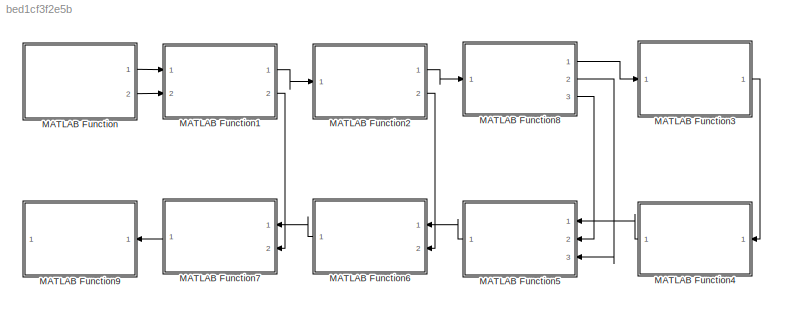
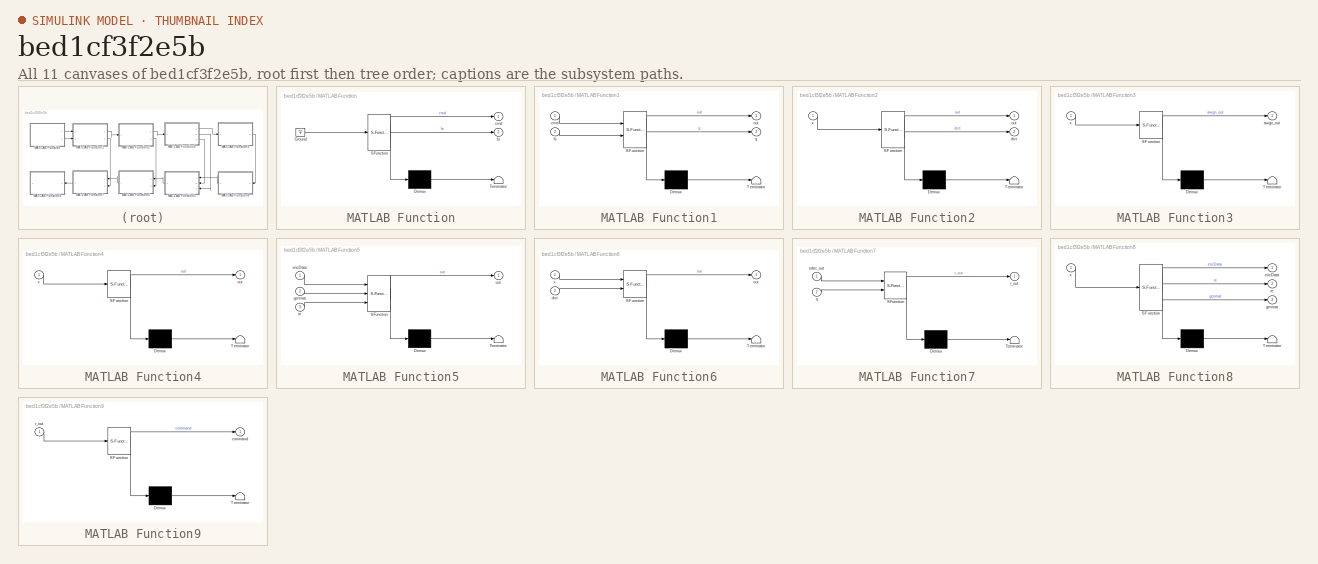
[diagram: thumbnail index - all 11 canvases of the model, root first then tree order]
MODEL slx_bed1cf3f2e5b
KIND model
CONFIG AbsTol = auto
CONFIG EnableMultiTasking = off
CONFIG FixedStep = auto
CONFIG MaxStep = auto
CONFIG MinStep = auto
CONFIG RelTol = 1e-3
CONFIG SampleTimeConstraint = Unconstrained
CONFIG Solver = VariableStepAuto
CONFIG SolverName = VariableStepAuto
CONFIG StartTime = 0.0
CONFIG StopTime = 10.0
BLOCK [SubSystem] MATLAB Function
  ErrorFcn = Stateflow.Translate.translate
  PermitHierarchicalResolution = ExplicitOnly
  Ports = [0, 2]
  RequestExecContextInheritance = off
  SFBlockType = MATLAB Function
  TreatAsAtomicUnit = on
BLOCK [Demux] MATLAB Function/ Demux 
  Outputs = 1
  Ports = [1, 1]
BLOCK [Ground] MATLAB Function/ Ground 
BLOCK [S-Function] MATLAB Function/ SFunction 
  EnableBusSupport = off
  FunctionName = sf_sfun
  PortCounts = [1 3]
  Ports = [1, 3]
  SFcnIsStateOwnerBlock = off
  SFunctionDeploymentMode = off
  Tag = Stateflow S-Function 2
BLOCK [Terminator] MATLAB Function/ Terminator 
BLOCK [Outport] MATLAB Function/cmd
BLOCK [Outport] MATLAB Function/fs
  Port = 2
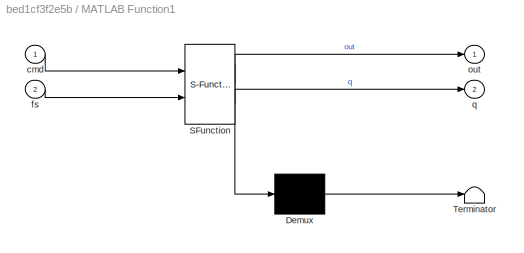
BLOCK [SubSystem] MATLAB Function1
  ErrorFcn = Stateflow.Translate.translate
  PermitHierarchicalResolution = ExplicitOnly
  Ports = [2, 2]
  RequestExecContextInheritance = off
  SFBlockType = MATLAB Function
  TreatAsAtomicUnit = on
BLOCK [Demux] MATLAB Function1/ Demux 
  Outputs = 1
  Ports = [1, 1]
BLOCK [S-Function] MATLAB Function1/ SFunction 
  EnableBusSupport = off
  FunctionName = sf_sfun
  PortCounts = [2 3]
  Ports = [2, 3]
  SFcnIsStateOwnerBlock = off
  SFunctionDeploymentMode = off
  Tag = Stateflow S-Function 1
BLOCK [Terminator] MATLAB Function1/ Terminator 
BLOCK [Inport] MATLAB Function1/cmd
BLOCK [Inport] MATLAB Function1/fs
  Port = 2
BLOCK [Outport] MATLAB Function1/out
BLOCK [Outport] MATLAB Function1/q
  Port = 2
BLOCK [SubSystem] MATLAB Function2
  ErrorFcn = Stateflow.Translate.translate
  PermitHierarchicalResolution = ExplicitOnly
  Ports = [1, 2]
  RequestExecContextInheritance = off
  SFBlockType = MATLAB Function
  TreatAsAtomicUnit = on
BLOCK [Demux] MATLAB Function2/ Demux 
  Outputs = 1
  Ports = [1, 1]
BLOCK [S-Function] MATLAB Function2/ SFunction 
  EnableBusSupport = off
  FunctionName = sf_sfun
  PortCounts = [1 3]
  Ports = [1, 3]
  SFcnIsStateOwnerBlock = off
  SFunctionDeploymentMode = off
  Tag = Stateflow S-Function 3
BLOCK [Terminator] MATLAB Function2/ Terminator 
BLOCK [Outport] MATLAB Function2/dict
  Port = 2
BLOCK [Outport] MATLAB Function2/out
BLOCK [Inport] MATLAB Function2/x
BLOCK [SubSystem] MATLAB Function3
  ErrorFcn = Stateflow.Translate.translate
  PermitHierarchicalResolution = ExplicitOnly
  Ports = [1, 1]
  RequestExecContextInheritance = off
  SFBlockType = MATLAB Function
  TreatAsAtomicUnit = on
BLOCK [Demux] MATLAB Function3/ Demux 
  Outputs = 1
  Ports = [1, 1]
BLOCK [S-Function] MATLAB Function3/ SFunction 
  EnableBusSupport = off
  FunctionName = sf_sfun
  PortCounts = [1 2]
  Ports = [1, 2]
  SFcnIsStateOwnerBlock = off
  SFunctionDeploymentMode = off
  Tag = Stateflow S-Function 4
BLOCK [Terminator] MATLAB Function3/ Terminator 
BLOCK [Outport] MATLAB Function3/awgn_out
BLOCK [Inport] MATLAB Function3/x
BLOCK [SubSystem] MATLAB Function4
  ErrorFcn = Stateflow.Translate.translate
  PermitHierarchicalResolution = ExplicitOnly
  Ports = [1, 1]
  RequestExecContextInheritance = off
  SFBlockType = MATLAB Function
  TreatAsAtomicUnit = on
BLOCK [Demux] MATLAB Function4/ Demux 
  Outputs = 1
  Ports = [1, 1]
BLOCK [S-Function] MATLAB Function4/ SFunction 
  EnableBusSupport = off
  FunctionName = sf_sfun
  PortCounts = [1 2]
  Ports = [1, 2]
  SFcnIsStateOwnerBlock = off
  SFunctionDeploymentMode = off
  Tag = Stateflow S-Function 5
BLOCK [Terminator] MATLAB Function4/ Terminator 
BLOCK [Outport] MATLAB Function4/out
BLOCK [Inport] MATLAB Function4/x
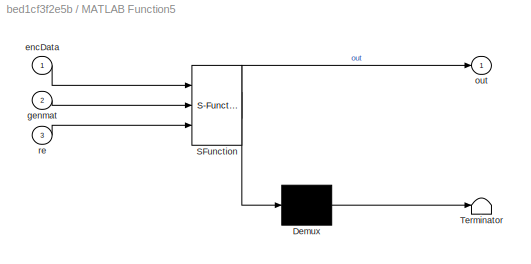
BLOCK [SubSystem] MATLAB Function5
  ErrorFcn = Stateflow.Translate.translate
  PermitHierarchicalResolution = ExplicitOnly
  Ports = [3, 1]
  RequestExecContextInheritance = off
  SFBlockType = MATLAB Function
  TreatAsAtomicUnit = on
BLOCK [Demux] MATLAB Function5/ Demux 
  Outputs = 1
  Ports = [1, 1]
BLOCK [S-Function] MATLAB Function5/ SFunction 
  EnableBusSupport = off
  FunctionName = sf_sfun
  PortCounts = [3 2]
  Ports = [3, 2]
  SFcnIsStateOwnerBlock = off
  SFunctionDeploymentMode = off
  Tag = Stateflow S-Function 6
BLOCK [Terminator] MATLAB Function5/ Terminator 
BLOCK [Inport] MATLAB Function5/encData
BLOCK [Inport] MATLAB Function5/genmat
  Port = 2
BLOCK [Outport] MATLAB Function5/out
BLOCK [Inport] MATLAB Function5/re
  Port = 3
BLOCK [SubSystem] MATLAB Function6
  ErrorFcn = Stateflow.Translate.translate
  PermitHierarchicalResolution = ExplicitOnly
  Ports = [2, 1]
  RequestExecContextInheritance = off
  SFBlockType = MATLAB Function
  TreatAsAtomicUnit = on
BLOCK [Demux] MATLAB Function6/ Demux 
  Outputs = 1
  Ports = [1, 1]
BLOCK [S-Function] MATLAB Function6/ SFunction 
  EnableBusSupport = off
  FunctionName = sf_sfun
  PortCounts = [2 2]
  Ports = [2, 2]
  SFcnIsStateOwnerBlock = off
  SFunctionDeploymentMode = off
  Tag = Stateflow S-Function 7
BLOCK [Terminator] MATLAB Function6/ Terminator 
BLOCK [Inport] MATLAB Function6/dict
  Port = 2
BLOCK [Outport] MATLAB Function6/out
BLOCK [Inport] MATLAB Function6/x
BLOCK [SubSystem] MATLAB Function7
  ErrorFcn = Stateflow.Translate.translate
  PermitHierarchicalResolution = ExplicitOnly
  Ports = [2, 1]
  RequestExecContextInheritance = off
  SFBlockType = MATLAB Function
  TreatAsAtomicUnit = on
BLOCK [Demux] MATLAB Function7/ Demux 
  Outputs = 1
  Ports = [1, 1]
BLOCK [S-Function] MATLAB Function7/ SFunction 
  EnableBusSupport = off
  FunctionName = sf_sfun
  PortCounts = [2 2]
  Ports = [2, 2]
  SFcnIsStateOwnerBlock = off
  SFunctionDeploymentMode = off
  Tag = Stateflow S-Function 8
BLOCK [Terminator] MATLAB Function7/ Terminator 
BLOCK [Inport] MATLAB Function7/q
  Port = 2
BLOCK [Outport] MATLAB Function7/r_out
BLOCK [Inport] MATLAB Function7/sdec_out
BLOCK [SubSystem] MATLAB Function8
  ErrorFcn = Stateflow.Translate.translate
  PermitHierarchicalResolution = ExplicitOnly
  Ports = [1, 3]
  RequestExecContextInheritance = off
  SFBlockType = MATLAB Function
  TreatAsAtomicUnit = on
BLOCK [Demux] MATLAB Function8/ Demux 
  Outputs = 1
  Ports = [1, 1]
BLOCK [S-Function] MATLAB Function8/ SFunction 
  EnableBusSupport = off
  FunctionName = sf_sfun
  PortCounts = [1 4]
  Ports = [1, 4]
  SFcnIsStateOwnerBlock = off
  SFunctionDeploymentMode = off
  Tag = Stateflow S-Function 9
BLOCK [Terminator] MATLAB Function8/ Terminator 
BLOCK [Outport] MATLAB Function8/encData
BLOCK [Outport] MATLAB Function8/genmat
  Port = 3
BLOCK [Outport] MATLAB Function8/re
  Port = 2
BLOCK [Inport] MATLAB Function8/x
BLOCK [SubSystem] MATLAB Function9
  ErrorFcn = Stateflow.Translate.translate
  PermitHierarchicalResolution = ExplicitOnly
  Ports = [1, 1]
  RequestExecContextInheritance = off
  SFBlockType = MATLAB Function
  TreatAsAtomicUnit = on
BLOCK [Demux] MATLAB Function9/ Demux 
  Outputs = 1
  Ports = [1, 1]
BLOCK [S-Function] MATLAB Function9/ SFunction 
  EnableBusSupport = off
  FunctionName = sf_sfun
  PortCounts = [1 2]
  Ports = [1, 2]
  SFcnIsStateOwnerBlock = off
  SFunctionDeploymentMode = off
  Tag = Stateflow S-Function 10
BLOCK [Terminator] MATLAB Function9/ Terminator 
BLOCK [Outport] MATLAB Function9/command
BLOCK [Inport] MATLAB Function9/r_out
LINE MATLAB Function1:1 -> MATLAB Function2:1
LINE MATLAB Function1:2 -> MATLAB Function7:2
LINE MATLAB Function2:1 -> MATLAB Function8:1
LINE MATLAB Function2:2 -> MATLAB Function6:2
LINE MATLAB Function3:1 -> MATLAB Function4:1
LINE MATLAB Function4:1 -> MATLAB Function5:1
LINE MATLAB Function5:1 -> MATLAB Function6:1
LINE MATLAB Function6:1 -> MATLAB Function7:1
LINE MATLAB Function7:1 -> MATLAB Function9:1
LINE MATLAB Function8:1 -> MATLAB Function3:1
LINE MATLAB Function8:2 -> MATLAB Function5:3
LINE MATLAB Function8:3 -> MATLAB Function5:2
LINE MATLAB Function:1 -> MATLAB Function1:1
LINE MATLAB Function:2 -> MATLAB Function1:2
CHART MATLAB Function1 states=1 transitions=1
  STATE_LABEL 'eML_blk_kernel()'
  STATE_LABEL "SCRIPT:\nfunction [out, q] = quantize(cmd, fs)\n%%% input\n% N: 量化bit\n% infile: 输入声音信号\n%%% output\n% out: 量化后的信号,0:2^N-1\n\nN = 8\nq = (1-(-1))/2^N;\nout = floor((cmd+1)/q);\n\n% 原始信号\nlen = length(cmd);\nts = (0:len-1)/fs;\nfigure;\nplot(ts, cmd, 'r');\ntitle('原始信号');\nxlabel('time(s)');\nylabel('amplitude(V)');\n\n% 重建信号\n% reconstruct = q*out-1;\n% figure;\n% plot(ts, reconstruct, 'b')\n% title('重建信号');\n% xlabel('tim...<+39ch>"
CHART MATLAB Function states=1 transitions=1
  STATE_LABEL 'eML_blk_kernel()'
  STATE_LABEL "SCRIPT:\nfunction [cmd, fs] = commandCreate\nfs = 16000; \nR = audiorecorder(fs, 16 ,1) ;\ndisp('Start speaking.')\nrecordblocking(R,1);\ndisp('End of Recording.');\ncmd = getaudiodata(R);\naudiowrite('cmd.flac', cmd, fs);\nend\n"
CHART MATLAB Function2 states=1 transitions=1
  STATE_LABEL 'eML_blk_kernel()'
  STATE_LABEL 'SCRIPT:\nfunction [out, dict] = source_encode(x)\n%%% input\n% x: 量化后的信号\n% N: 量化bit\n%%% output\n% out: 哈夫曼编码结果\n\nN = 8\nlen = length(x);\nunique_x = unique(x);\nunique_len = length(unique_x);\n\nsymbols = cell(1, unique_len);\np = zeros(1, unique_len);\n\n% 计算符号概率\nfor i = 1:unique_len\n    symbols{1,i} = unique_x(i);\n    p(i) = numel(find(x==unique_x(i))) / len;\nend\n\n% 根据符号集symbols和概率数组p计算Huffman编码词典\n[dict, avg...<+735ch>'
CHART MATLAB Function3 states=1 transitions=1
  STATE_LABEL 'eML_blk_kernel()'
  STATE_LABEL 'SCRIPT:\nfunction awgn_out  = modulation(x)\n%%% QPSK modulation and AWGN\nsnr = 10;\nqpsk_out = pskmod(x,4,pi/4);\nawgn_out = awgn(qpsk_out, snr);\nend\n\n'
CHART MATLAB Function4 states=1 transitions=1
  STATE_LABEL 'eML_blk_kernel()'
  STATE_LABEL 'SCRIPT:\nfunction out  = demodulation(x)\nout = pskdemod(x,4,pi/4);\nout = double(out > 0.5);\nend'
CHART MATLAB Function5 states=1 transitions=1
  STATE_LABEL 'eML_blk_kernel()'
  STATE_LABEL "SCRIPT:\nfunction out  = channel_decode(encData, genmat, re)\nn = 7;\nk = 4;\nencData = reshape(encData, n, length(encData)/n)';\ndecData = decode(encData,n,k,'linear/binary',genmat);\ndecData = reshape(decData', [], 1);\nout = decData(1:(length(decData)-k+re));\nend"
CHART MATLAB Function6 states=1 transitions=1
  STATE_LABEL 'eML_blk_kernel()'
  STATE_LABEL 'SCRIPT:\nfunction out  = source_decode(x, dict)\nout = huffmandeco(x, dict);\nend'
CHART MATLAB Function7 states=1 transitions=1
  STATE_LABEL 'eML_blk_kernel()'
  STATE_LABEL "SCRIPT:\nfunction r_out  = restore(sdec_out, q)\nr_out = q*sdec_out-1;\nfigure;\nplot(r_out, 'b')\ntitle('重建信号');\nxlabel('time(s)');\nylabel('amplitude(V)');\nend"
CHART MATLAB Function8 states=1 transitions=1
  STATE_LABEL 'eML_blk_kernel()'
  STATE_LABEL "SCRIPT:\nfunction [encData, re, genmat] = channel_encode(x)\n%%% input\n% x: 信源编码后的结果\n% n: 编码长度\n% k: 信息长度\n%%% output:\n% encData: 线性分组码编码结果\n% re: 余数\n% genmat: 生成多项式\n\nn = 7;\nk = 4;\nlen = length(x);\ndata = zeros(ceil(len/k)*k, 1);\ndata(1:len) = x;\nre = rem(len, k);\ndata = reshape(data, k, length(data)/k)';\n\npol = cyclpoly(n,k);\nparmat = cyclgen(n,pol);\ngenmat = gen2par(parmat);\nencData = encode(data,n,k...<+206ch>"
CHART MATLAB Function9 states=1 transitions=1
  STATE_LABEL 'eML_blk_kernel()'
  STATE_LABEL "SCRIPT:\nfunction command = recognize(r_out)\nload('commandNet.mat');\nauditorySpect = helperExtractAuditoryFeatures(r_out,fs);\ncommand = classify(trainedNet,auditorySpect);\ndisp(command)\nend"
CHART  states=0 transitions=0
CHART  states=0 transitions=0
CHART  states=0 transitions=0
CHART  states=0 transitions=0
CHART  states=0 transitions=0
CHART  states=0 transitions=0
CHART  states=0 transitions=0
CHART  states=0 transitions=0
CHART  states=0 transitions=0
CHART  states=0 transitions=0
